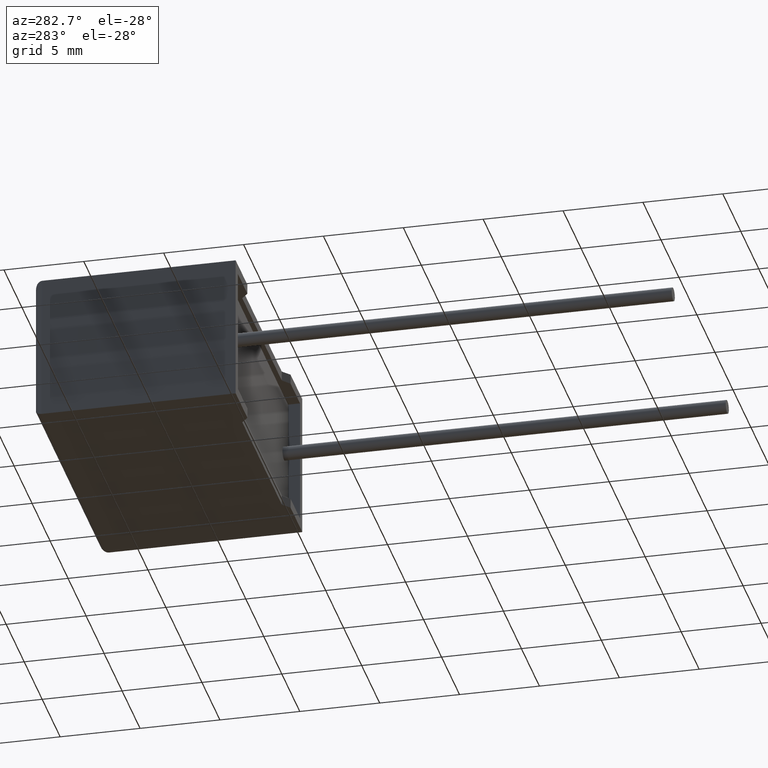
[diagram: clean part render]
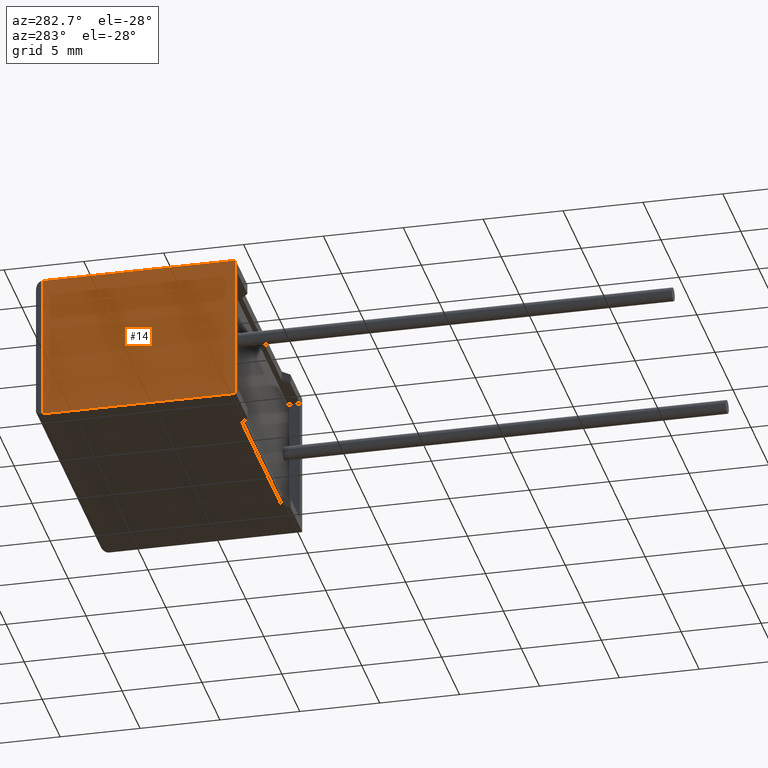
[diagram: same view with one face highlighted and labeled with its STEP entity id]
A machine part, auxiliary view. The second image highlights one B-rep face of the part: STEP entity #14.
In plain terms, the highlighted planar face has unit normal (1, 0, 0).
Its self-contained STEP definition (entity closure, byte-faithful):
#14 = ADVANCED_FACE ( 'NONE', ( #2495 ), #2258, .F. ) ;
#170 = ORIENTED_EDGE ( 'NONE', *, *, #319, .F. ) ;
#308 = VERTEX_POINT ( 'NONE', #1473 ) ;
#319 = EDGE_CURVE ( 'NONE', #2554, #1871, #2308, .T. ) ;
#394 = VECTOR ( 'NONE', #2989, 1000.000000000000000 ) ;
#450 = CARTESIAN_POINT ( 'NONE',  ( 0.0000000000000000000, 0.0000000000000000000, 0.0000000000000000000 ) ) ;
#457 = ORIENTED_EDGE ( 'NONE', *, *, #878, .T. ) ;
#487 = VECTOR ( 'NONE', #1185, 1000.000000000000000 ) ;
#568 = DIRECTION ( 'NONE',  ( 0.0000000000000000000, 0.0000000000000000000, -1.000000000000000000 ) ) ;
#571 = EDGE_LOOP ( 'NONE', ( #593, #983, #457, #170 ) ) ;
#593 = ORIENTED_EDGE ( 'NONE', *, *, #1970, .F. ) ;
#632 = VECTOR ( 'NONE', #1492, 1000.000000000000000 ) ;
#655 = CARTESIAN_POINT ( 'NONE',  ( 0.0000000000000000000, 12.10000000000000000, 0.0000000000000000000 ) ) ;
#878 = EDGE_CURVE ( 'NONE', #917, #1871, #2307, .T. ) ;
#917 = VERTEX_POINT ( 'NONE', #655 ) ;
#983 = ORIENTED_EDGE ( 'NONE', *, *, #2292, .T. ) ;
#1010 = CARTESIAN_POINT ( 'NONE',  ( 0.0000000000000000000, 0.0000000000000000000, 9.199999999999999300 ) ) ;
#1036 = CARTESIAN_POINT ( 'NONE',  ( 0.0000000000000000000, 12.10000000000000000, 9.199999999999999300 ) ) ;
#1185 = DIRECTION ( 'NONE',  ( -0.0000000000000000000, -1.000000000000000000, -0.0000000000000000000 ) ) ;
#1201 = CARTESIAN_POINT ( 'NONE',  ( 0.0000000000000000000, 0.0000000000000000000, 0.0000000000000000000 ) ) ;
#1295 = AXIS2_PLACEMENT_3D ( 'NONE', #2303, #2767, #1880 ) ;
#1307 = CARTESIAN_POINT ( 'NONE',  ( 0.0000000000000000000, 0.0000000000000000000, 9.199999999999999300 ) ) ;
#1326 = CARTESIAN_POINT ( 'NONE',  ( 0.0000000000000000000, 0.0000000000000000000, 9.199999999999999300 ) ) ;
#1473 = CARTESIAN_POINT ( 'NONE',  ( 0.0000000000000000000, 12.10000000000000000, 9.199999999999999300 ) ) ;
#1492 = DIRECTION ( 'NONE',  ( -0.0000000000000000000, -0.0000000000000000000, -1.000000000000000000 ) ) ;
#1597 = LINE ( 'NONE', #1326, #394 ) ;
#1871 = VERTEX_POINT ( 'NONE', #450 ) ;
#1880 = DIRECTION ( 'NONE',  ( 0.0000000000000000000, 0.0000000000000000000, -1.000000000000000000 ) ) ;
#1970 = EDGE_CURVE ( 'NONE', #308, #2554, #1597, .T. ) ;
#2080 = LINE ( 'NONE', #1036, #2240 ) ;
#2240 = VECTOR ( 'NONE', #568, 1000.000000000000000 ) ;
#2258 = PLANE ( 'NONE',  #1295 ) ;
#2292 = EDGE_CURVE ( 'NONE', #308, #917, #2080, .T. ) ;
#2303 = CARTESIAN_POINT ( 'NONE',  ( 0.0000000000000000000, 0.0000000000000000000, 9.199999999999999300 ) ) ;
#2307 = LINE ( 'NONE', #1201, #487 ) ;
#2308 = LINE ( 'NONE', #1010, #632 ) ;
#2495 = FACE_OUTER_BOUND ( 'NONE', #571, .T. ) ;
#2554 = VERTEX_POINT ( 'NONE', #1307 ) ;
#2767 = DIRECTION ( 'NONE',  ( 1.000000000000000000, 0.0000000000000000000, 0.0000000000000000000 ) ) ;
#2989 = DIRECTION ( 'NONE',  ( -0.0000000000000000000, -1.000000000000000000, -0.0000000000000000000 ) ) ;